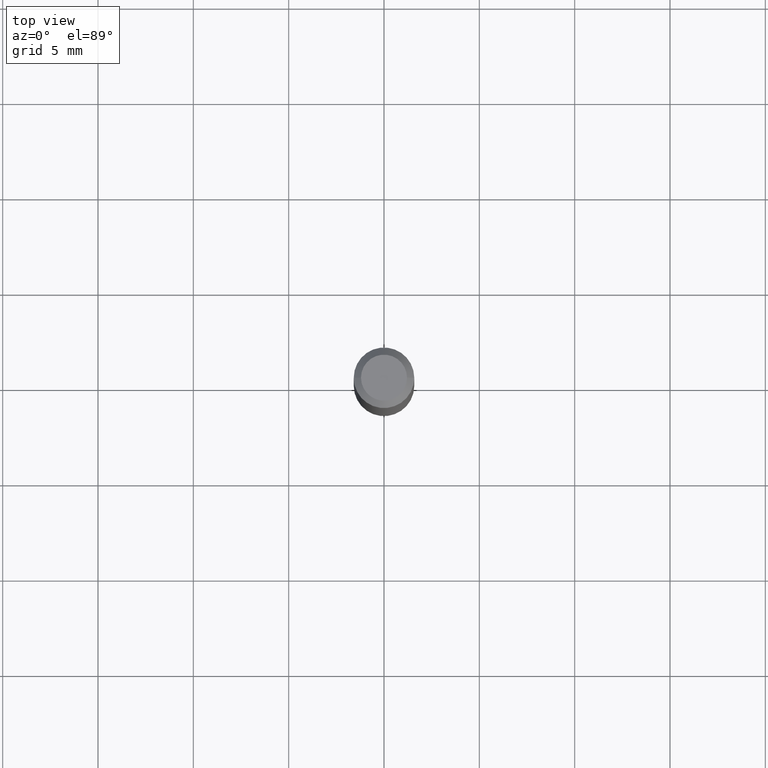
[diagram: clean part render]
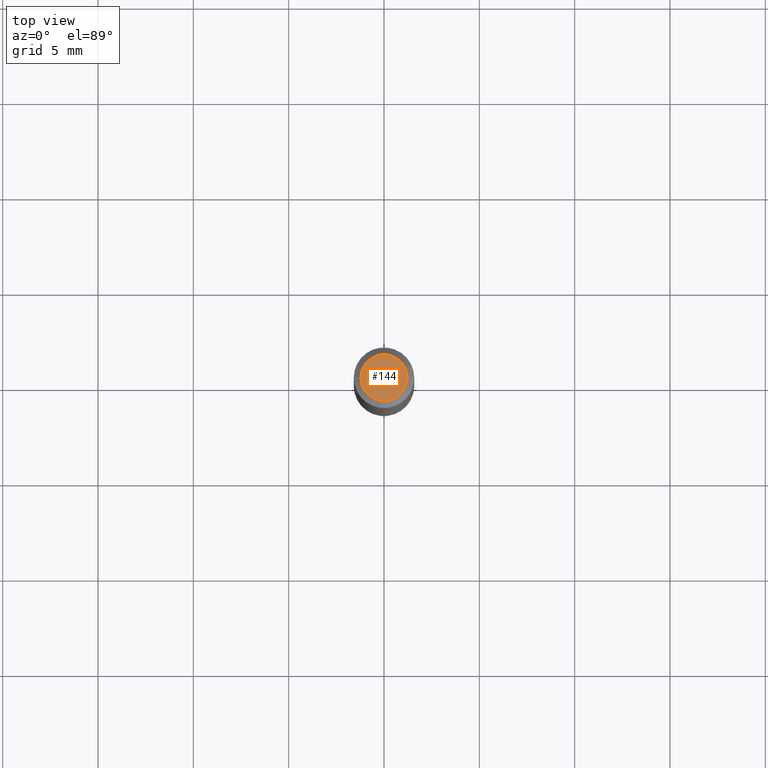
[diagram: same view with one face highlighted and labeled with its STEP entity id]
A machine part, top view. The second image highlights one B-rep face of the part: STEP entity #144.
In plain terms, the highlighted planar face has unit normal (0, -0, -1).
Its self-contained STEP definition (entity closure, byte-faithful):
#11 = AXIS2_PLACEMENT_3D ( 'NONE', #258, #255, #146 ) ;
#31 = DIRECTION ( 'NONE',  ( 1.000000000000000000, -6.982962677686267499E-15, 4.852736867747366768E-29 ) ) ;
#45 = CARTESIAN_POINT ( 'NONE',  ( 3.316907271900976096E-16, 0.04749999999999999362, 7.498036163507942769E-17 ) ) ;
#59 = CARTESIAN_POINT ( 'NONE',  ( 0.04749999999999999362, -4.035134999187569748E-16, 4.816514504602601874E-16 ) ) ;
#75 = PLANE ( 'NONE',  #297 ) ;
#81 = ORIENTED_EDGE ( 'NONE', *, *, #284, .T. ) ;
#100 = EDGE_CURVE ( 'NONE', #453, #219, #310, .T. ) ;
#103 = DIRECTION ( 'NONE',  ( -2.445468806185136597E-29, 3.491481338843145583E-15, 1.000000000000000000 ) ) ;
#144 = ADVANCED_FACE ( 'NONE', ( #431 ), #75, .F. ) ;
#146 = DIRECTION ( 'NONE',  ( 1.000000000000000000, -6.982962677686267499E-15, 4.852736867747366768E-29 ) ) ;
#189 = ORIENTED_EDGE ( 'NONE', *, *, #100, .T. ) ;
#219 = VERTEX_POINT ( 'NONE', #287 ) ;
#255 = DIRECTION ( 'NONE',  ( -2.445468806185136597E-29, 3.491481338843145583E-15, 1.000000000000000000 ) ) ;
#258 = CARTESIAN_POINT ( 'NONE',  ( -1.177863597554385851E-44, 1.681677051108723369E-30, 4.816514504602576236E-16 ) ) ;
#275 = EDGE_LOOP ( 'NONE', ( #81, #189 ) ) ;
#284 = EDGE_CURVE ( 'NONE', #219, #453, #339, .T. ) ;
#286 = CARTESIAN_POINT ( 'NONE',  ( -1.177863597554385851E-44, 1.681677051108723369E-30, 4.816514504602576236E-16 ) ) ;
#287 = CARTESIAN_POINT ( 'NONE',  ( -0.04749999999999999362, 3.578768372314218888E-16, 4.816514504602552570E-16 ) ) ;
#297 = AXIS2_PLACEMENT_3D ( 'NONE', #45, #397, #363 ) ;
#310 = CIRCLE ( 'NONE', #422, 0.04749999999999999362 ) ;
#339 = CIRCLE ( 'NONE', #11, 0.04749999999999999362 ) ;
#363 = DIRECTION ( 'NONE',  ( -1.000000000000000000, 6.982962677686265922E-15, -4.876176775795935793E-29 ) ) ;
#397 = DIRECTION ( 'NONE',  ( 2.438088387897960049E-29, -3.491481338843145188E-15, -1.000000000000000000 ) ) ;
#422 = AXIS2_PLACEMENT_3D ( 'NONE', #286, #103, #31 ) ;
#431 = FACE_OUTER_BOUND ( 'NONE', #275, .T. ) ;
#453 = VERTEX_POINT ( 'NONE', #59 ) ;